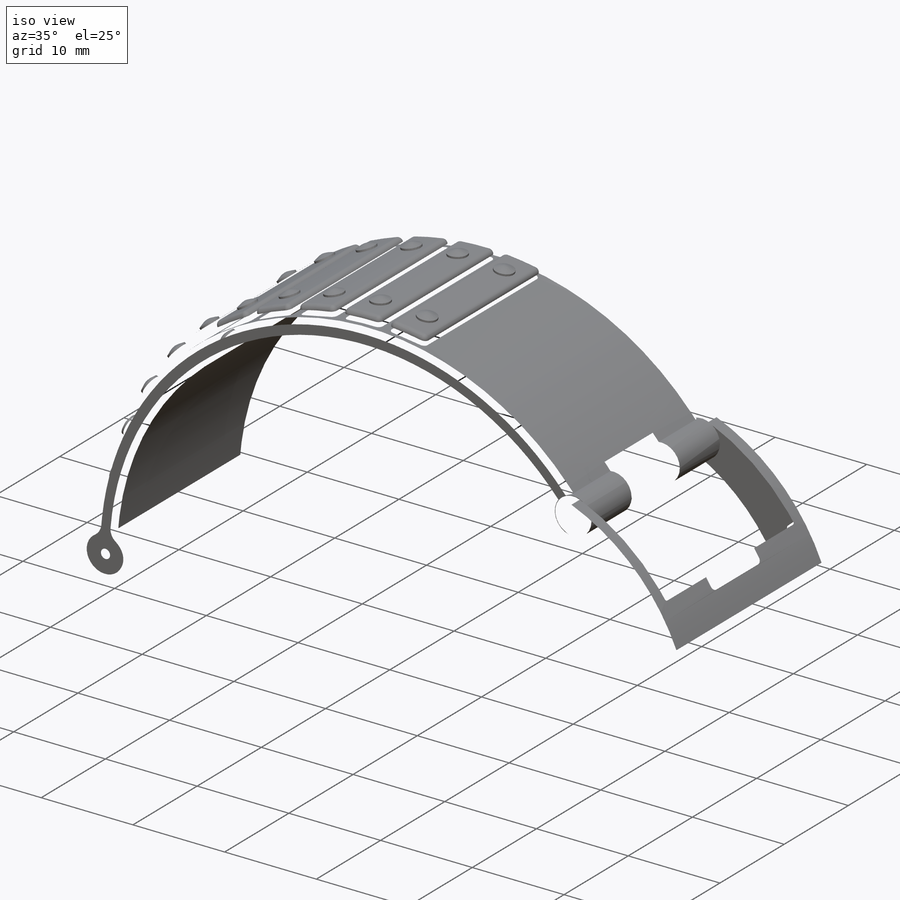
[diagram: iso view]
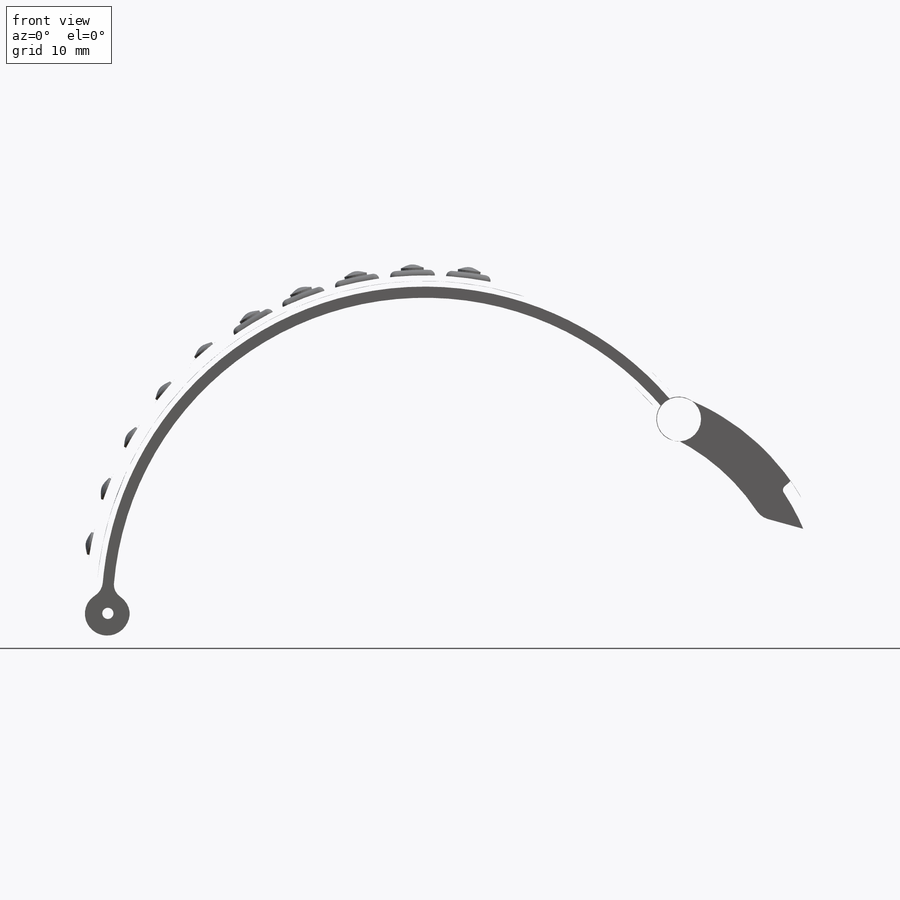
[diagram: front view]
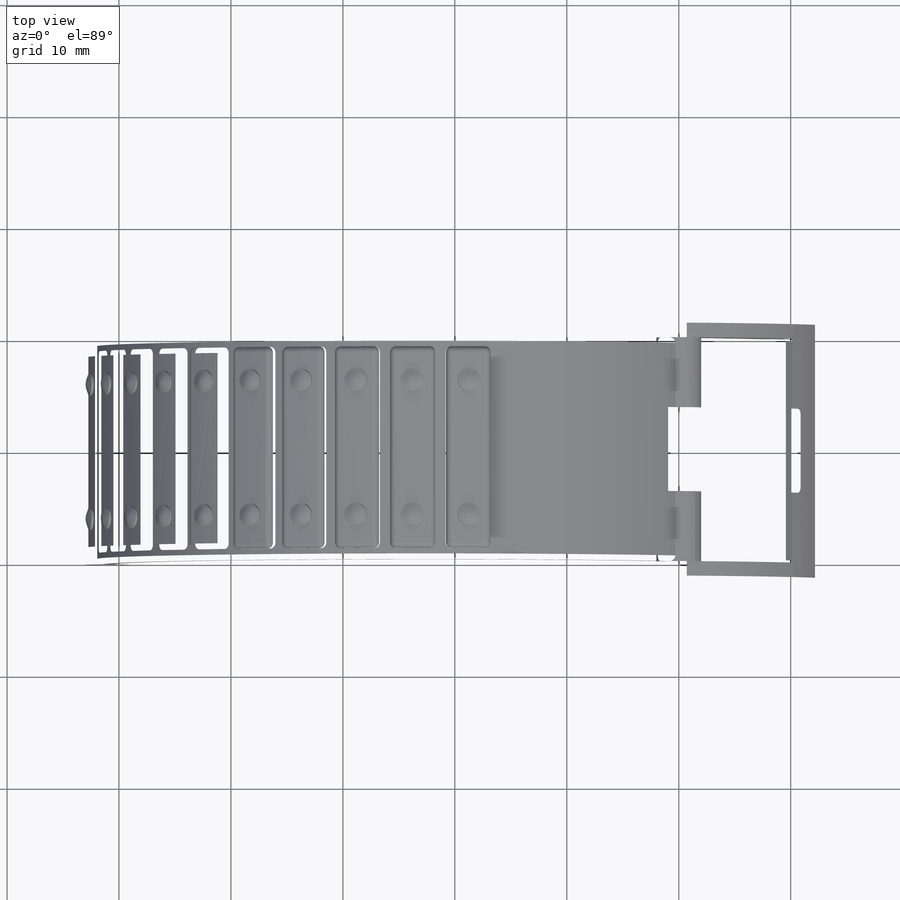
[diagram: top view]
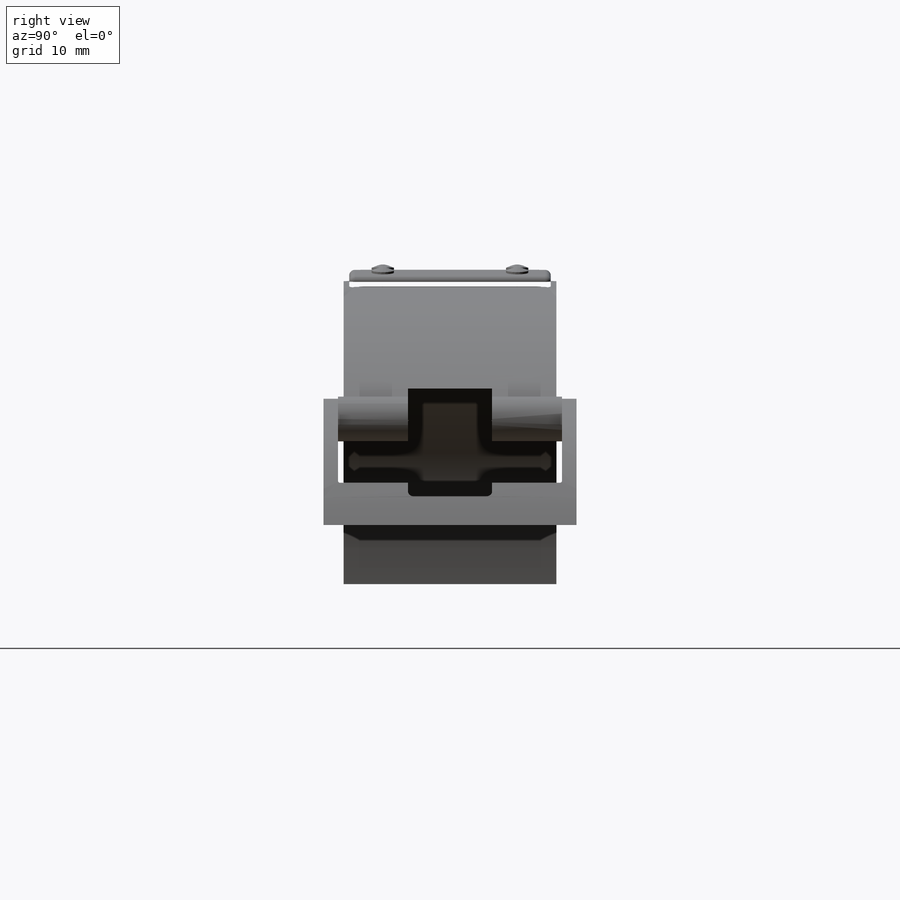
[diagram: right view]
SOLIDWORKS PART (.sldprt)
format: sldprt  version: not decoded by parser v0  size: 2,262,528 bytes
history: native  units: mm
features: sketch x12, fillet x9, extrude x8, cut_extrude x4, material x1, dome x1, pattern_linear x1, mirror x1, plane x1 (+11 scaffold rows collapsed)
feature tree (49):
  scaffold x11  (default folders/planes/origin — collapsed)
  material  "Material <not specified>"
  sketch  "Sketch1"  dims[D1=20.0mm D2=75.0mm D3=20.0mm]
  extrude  "Boss-Extrude1"  Depth=2mm
  sketch  "Sketch3"  dims[D1=5.0mm]
  extrude  "Boss-Extrude2"  [1 undecoded]
  sketch  "Sketch4"  dims[D1=2.0mm]
  cut_extrude  "Cut-Extrude1"  [1 undecoded]
  fillet  "Fillet2"  Radius=1mm
  sketch  "Sketch5"  dims[D1=18.0mm D2=4.0mm]
  extrude  "Boss-Extrude3"  Depth=1mm
  fillet  "Fillet3"  Radius=0.5mm
  fillet  "Fillet4"  Radius=0.5mm
  sketch  "Sketch9"  dims[D2=2.0mm D1=6.0mm D3=6.0mm]
  extrude  "Boss-Extrude4"  Depth=0.2mm
  fillet  "Fillet10"  Radius=0.5mm
  dome  "Dome1"
  pattern_linear  "LPattern1"  Count1=10 Count2=1 Spacing1=5mm Spacing2=10mm
  sketch  "Sketch7"  dims[D1=1.0mm]
  cut_extrude  "Cut-Extrude2"  [1 undecoded]
  sketch  "Sketch10"  dims[D1=4.0mm]
  extrude  "Boss-Extrude5"  [1 undecoded]
  sketch  "Sketch11"  dims[D1=2.0mm]
  cut_extrude  "Cut-Extrude3"  [1 undecoded]
  sketch  "Sketch12"  dims[c1.D3=3.9mm c1.D2=0.5mm c1.D1=17.0mm c2.D2=5.0mm]
  extrude  "Boss-Extrude6"  Depth=1.5mm
  mirror  "Mirror1"
  sketch  "Sketch13"  dims[D1=0.0mm D2=1.0mm]
  extrude  "Boss-Extrude7"  [1 undecoded]
  fillet  "Fillet5"  Radius=2mm
  plane  "Plane1"
  sketch  "Sketch14"  dims[D1=7.5mm]
  cut_extrude  "Cut-Extrude4"  [1 undecoded]
  fillet  "Fillet6"  Radius=0.2mm
  sketch  "Sketch15"  dims[D1=0.3mm]
  extrude  "Boss-Extrude10"  Depth=3.75mm
  fillet  "Fillet7"  Radius=0.5mm
  fillet  "Fillet8"  Radius=0.1mm
  fillet  "Fillet9"  Radius=0.2mm
decode coverage: 27 of 36 modeling features carry decoded parameters
note: 7 parameter values undecoded
summary: no parameter record found for 7 features
note: suppression state not decoded; provenance and decode notes live in map.json
